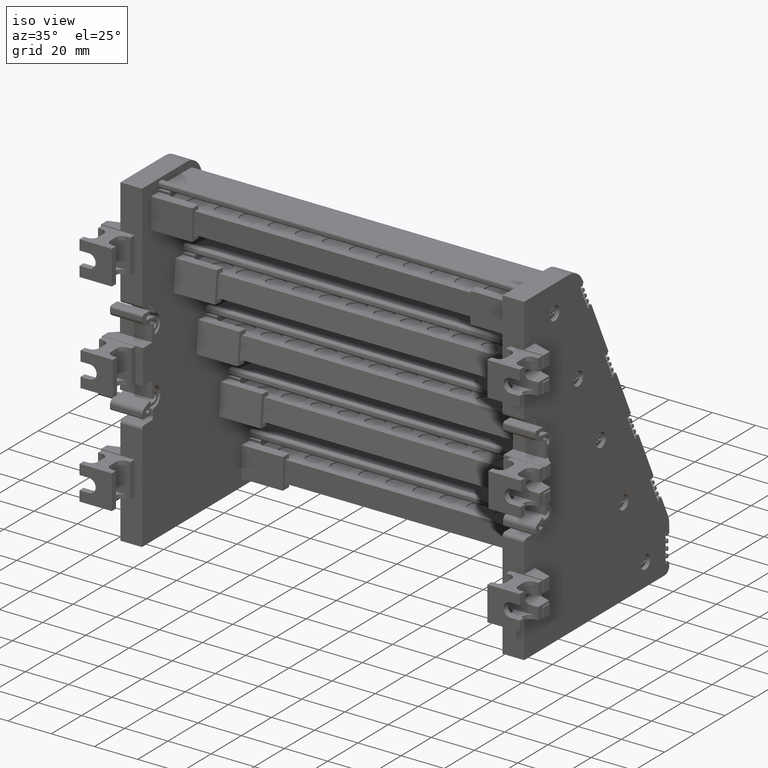
[diagram: clean part render]
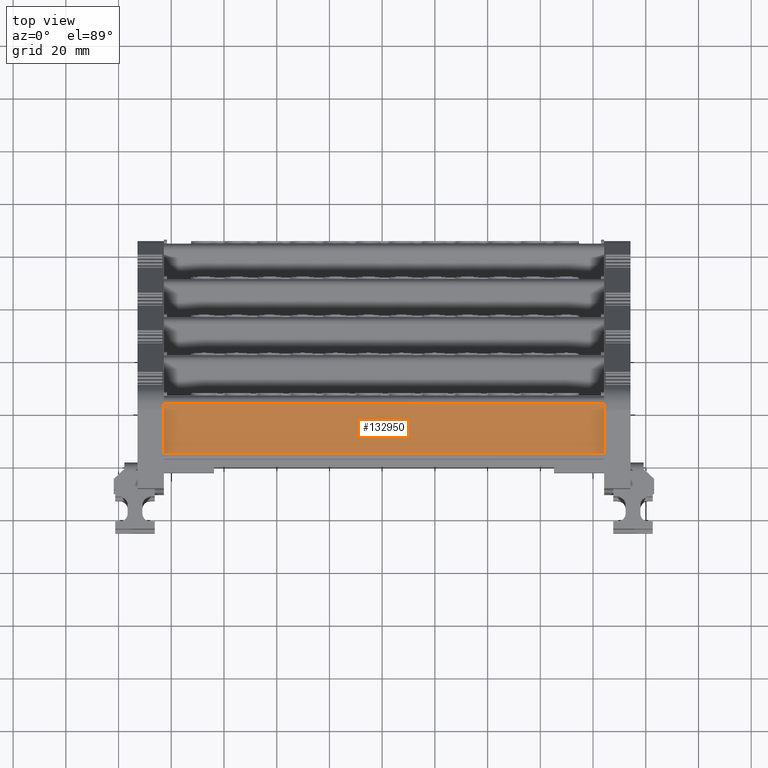
[diagram: tour spotlight — one face highlighted and labeled with its STEP entity id]
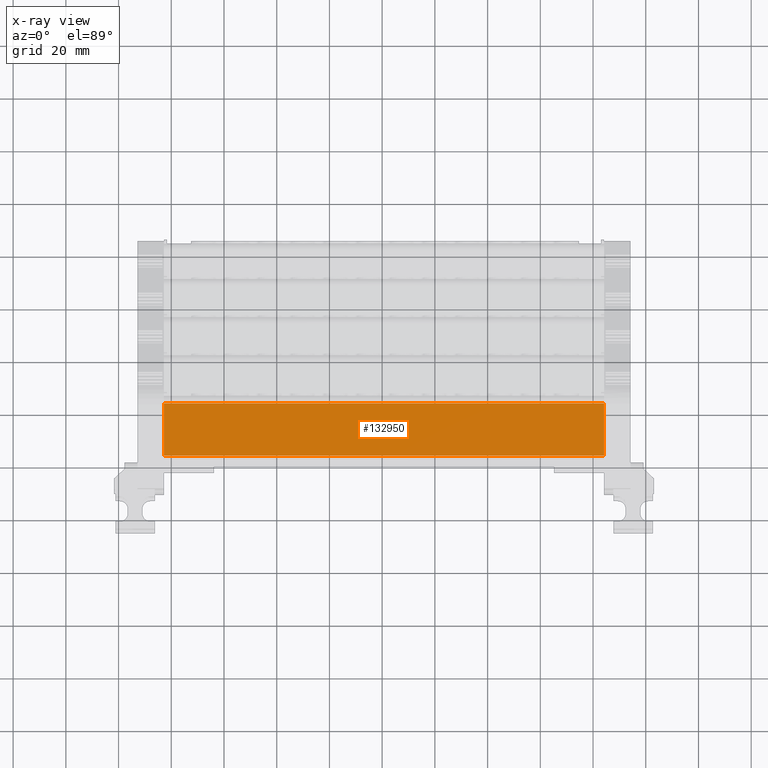
[diagram: x-ray of the same camera — body ghosted, this tour face saturated]
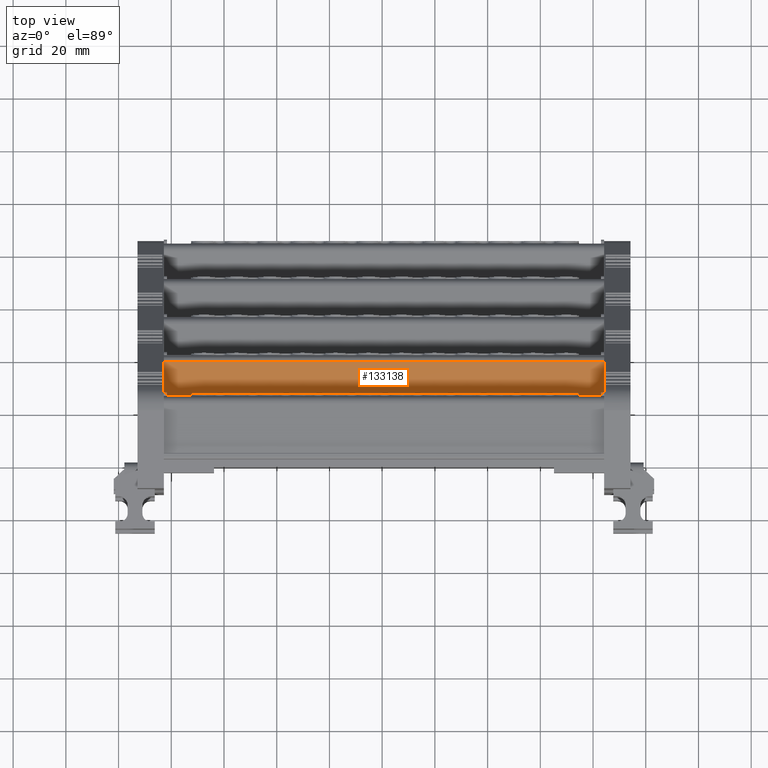
[diagram: tour spotlight — one face highlighted and labeled with its STEP entity id]
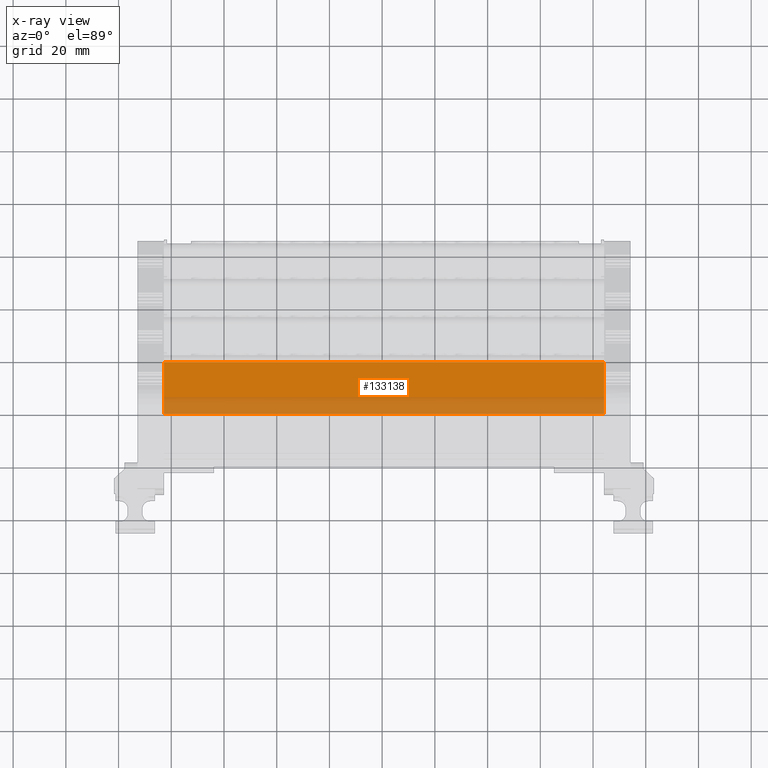
[diagram: x-ray of the same camera — body ghosted, this tour face saturated]
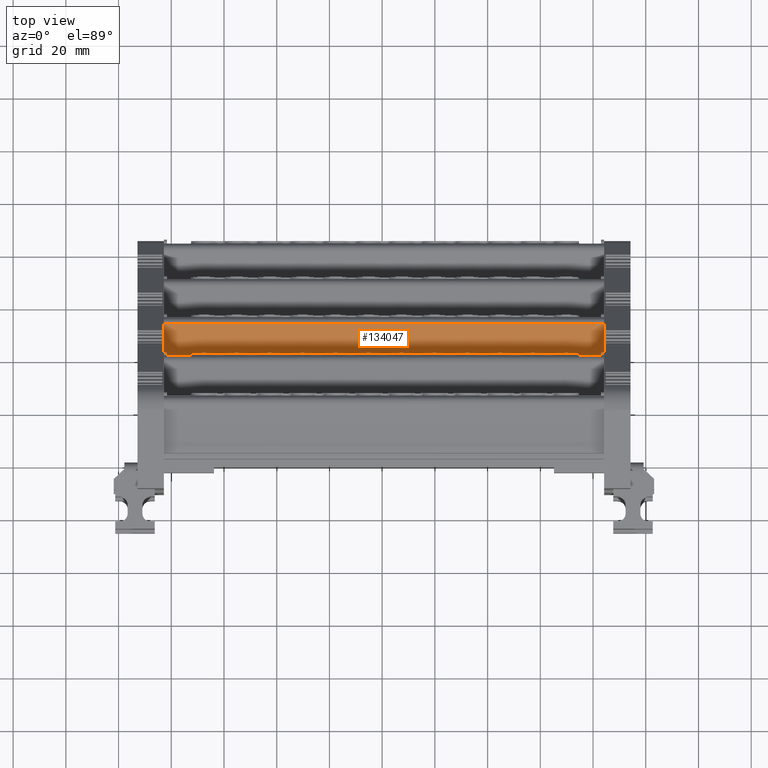
[diagram: tour spotlight — one face highlighted and labeled with its STEP entity id]
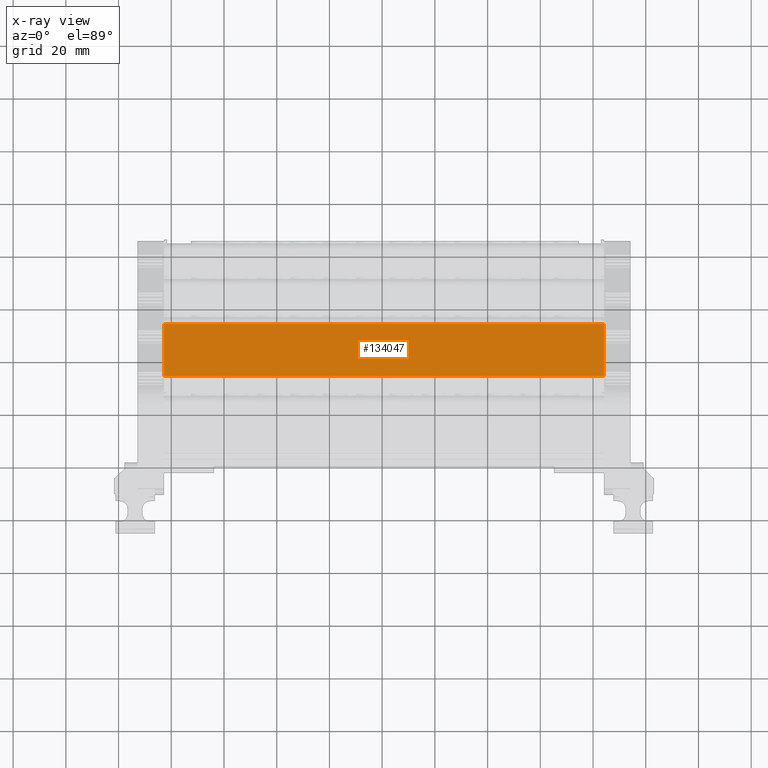
[diagram: x-ray of the same camera — body ghosted, this tour face saturated]
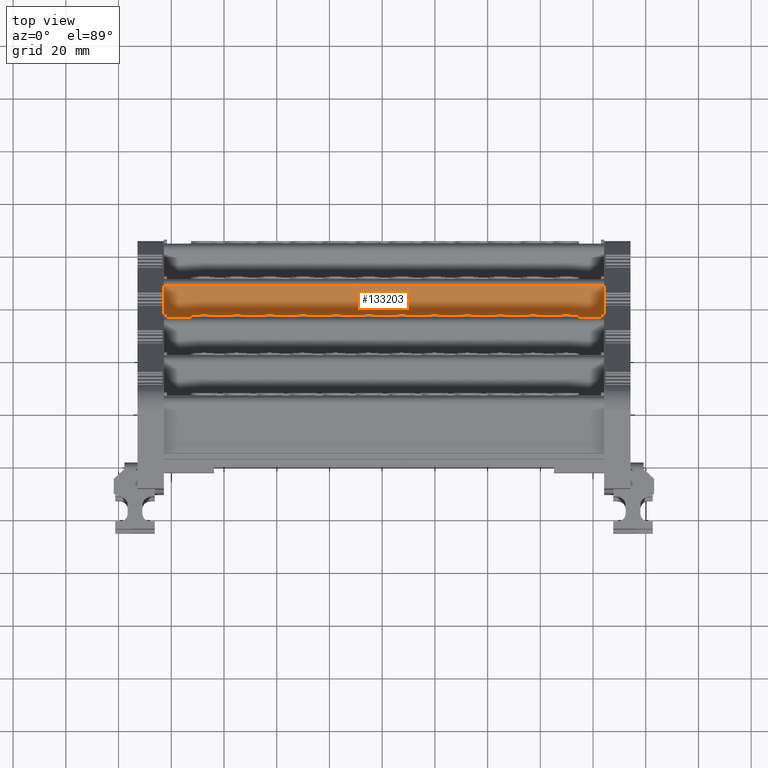
[diagram: tour spotlight — one face highlighted and labeled with its STEP entity id]
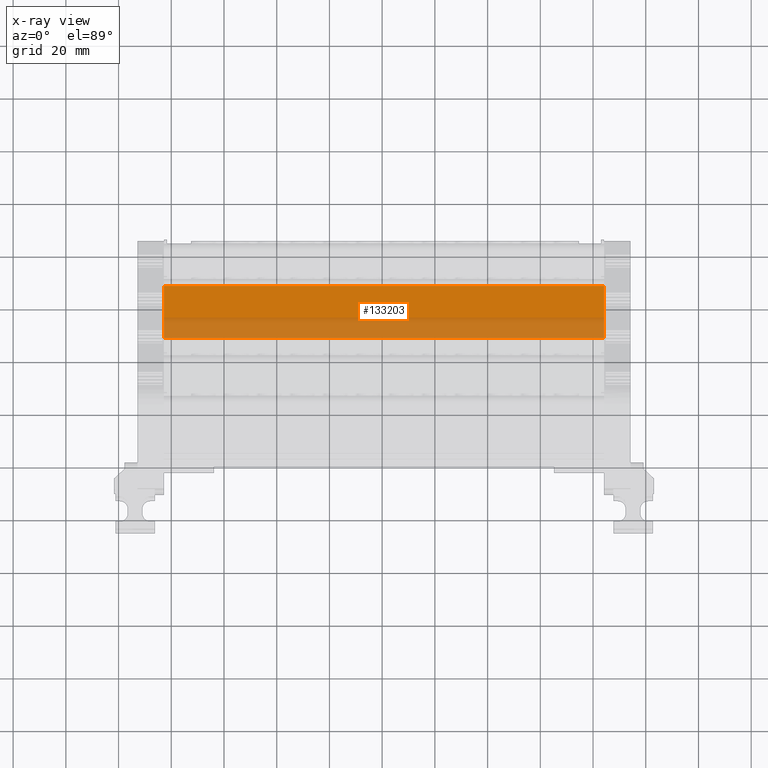
[diagram: x-ray of the same camera — body ghosted, this tour face saturated]
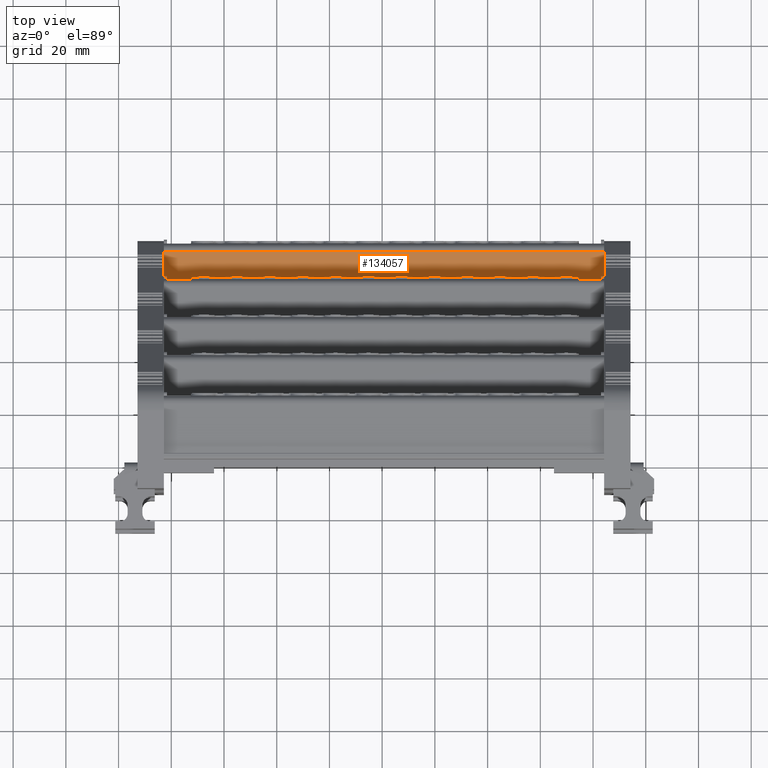
[diagram: tour spotlight — one face highlighted and labeled with its STEP entity id]
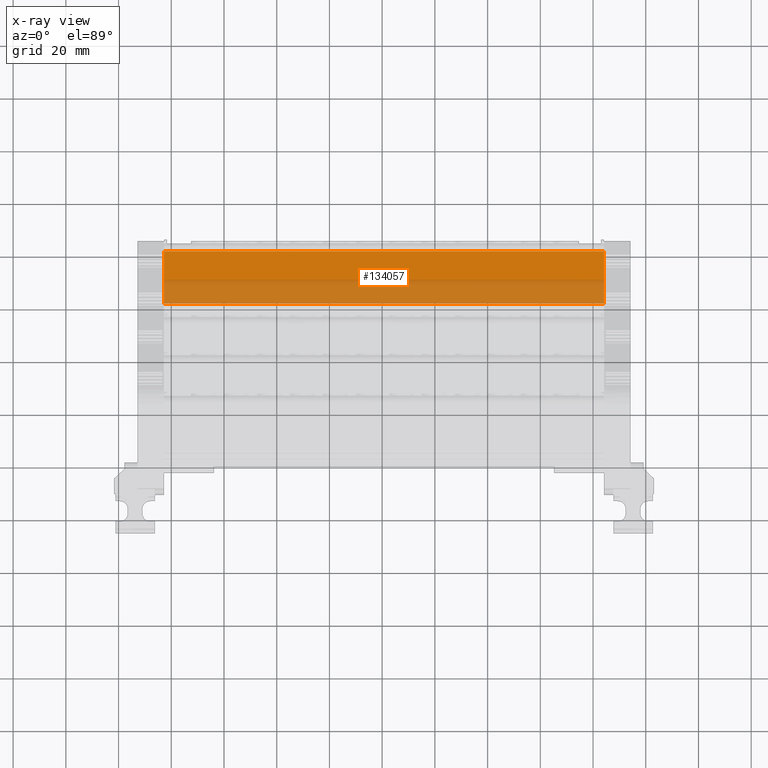
[diagram: x-ray of the same camera — body ghosted, this tour face saturated]
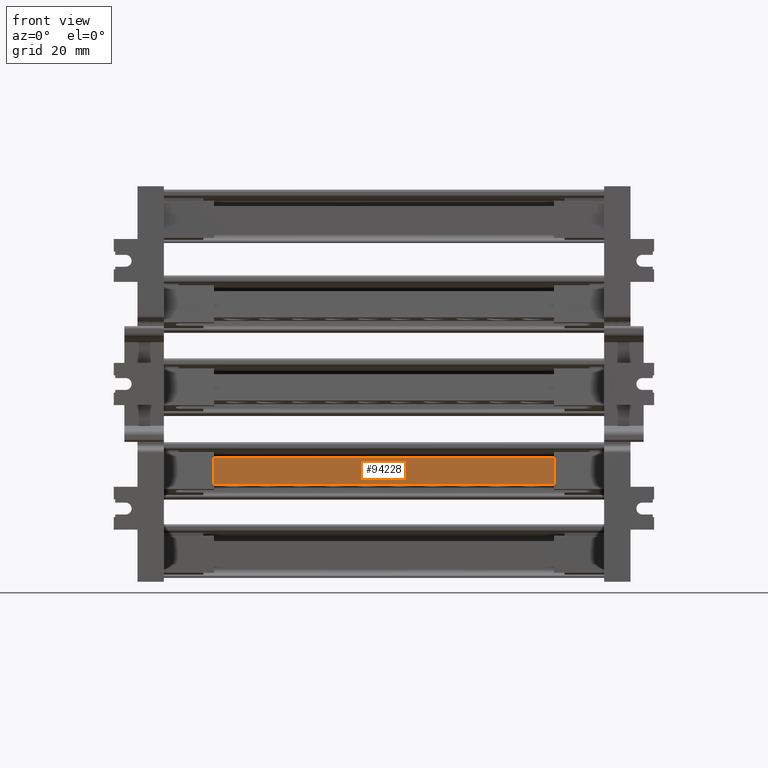
[diagram: tour spotlight — one face highlighted and labeled with its STEP entity id]
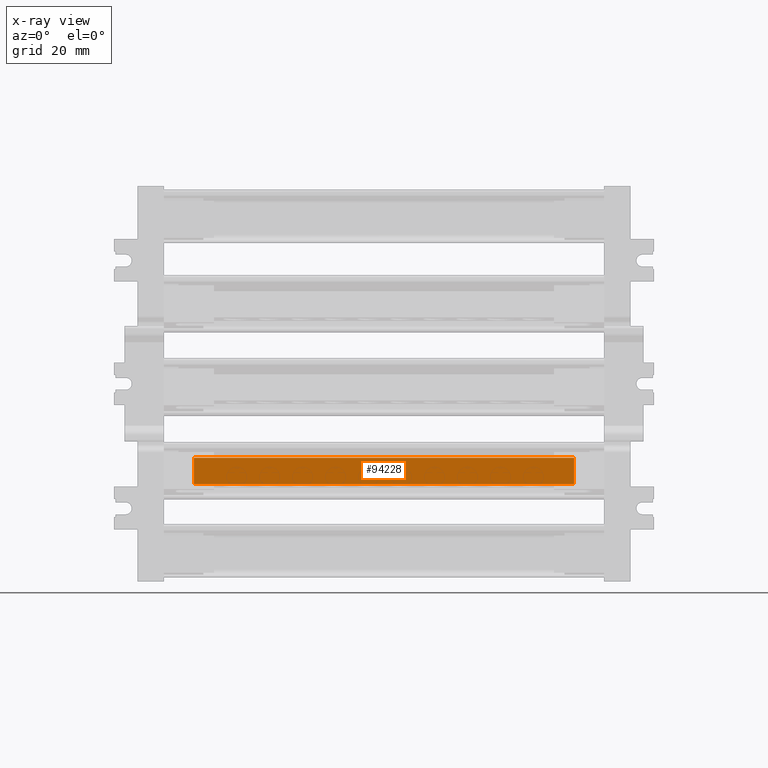
[diagram: x-ray of the same camera — body ghosted, this tour face saturated]
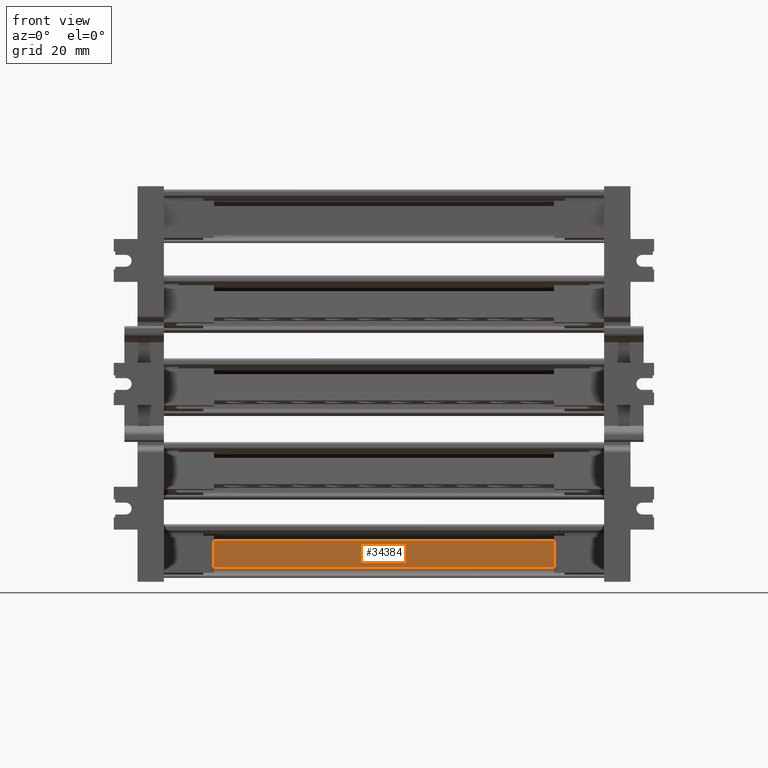
[diagram: tour spotlight — one face highlighted and labeled with its STEP entity id]
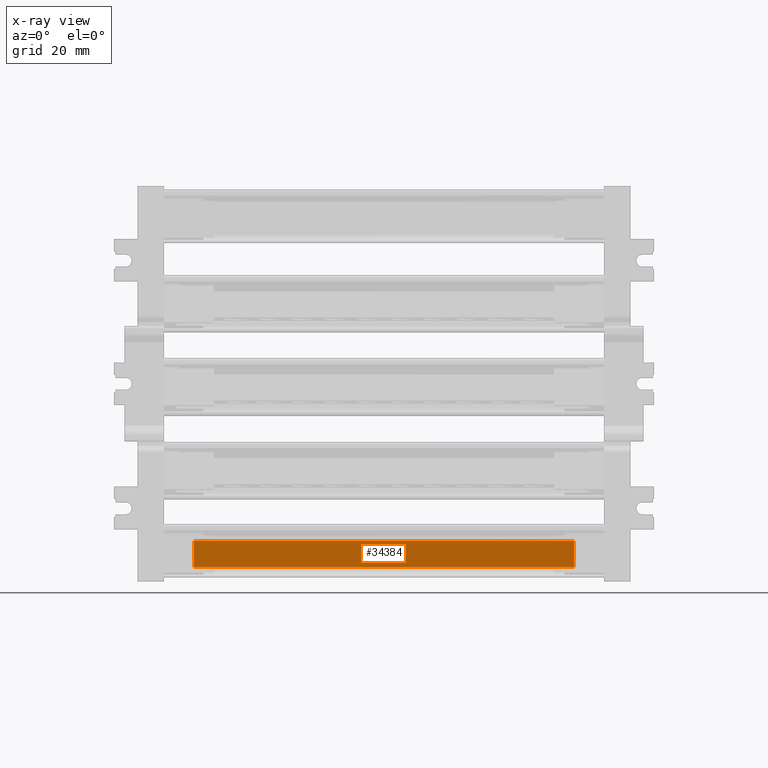
[diagram: x-ray of the same camera — body ghosted, this tour face saturated]
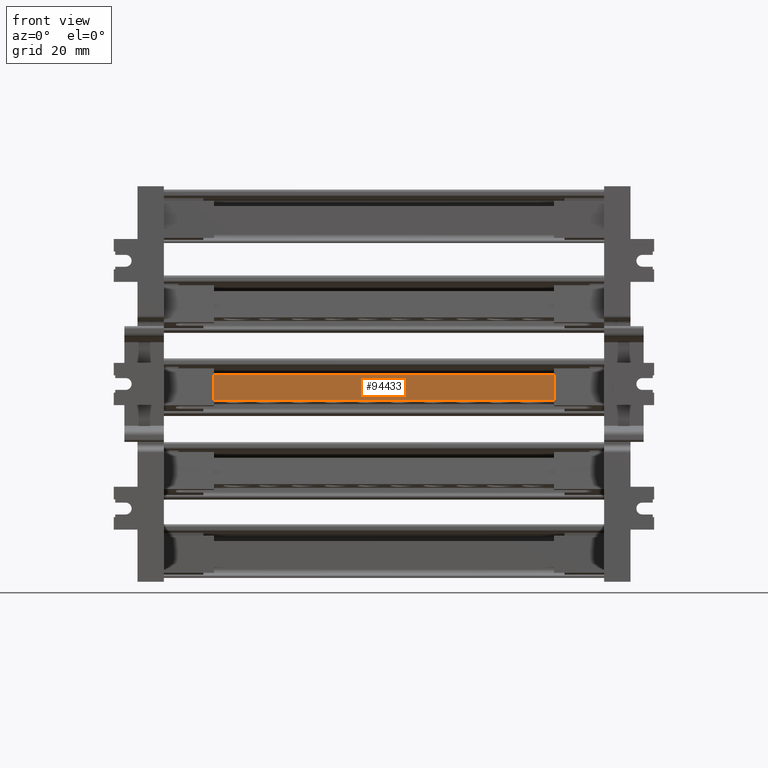
[diagram: tour spotlight — one face highlighted and labeled with its STEP entity id]
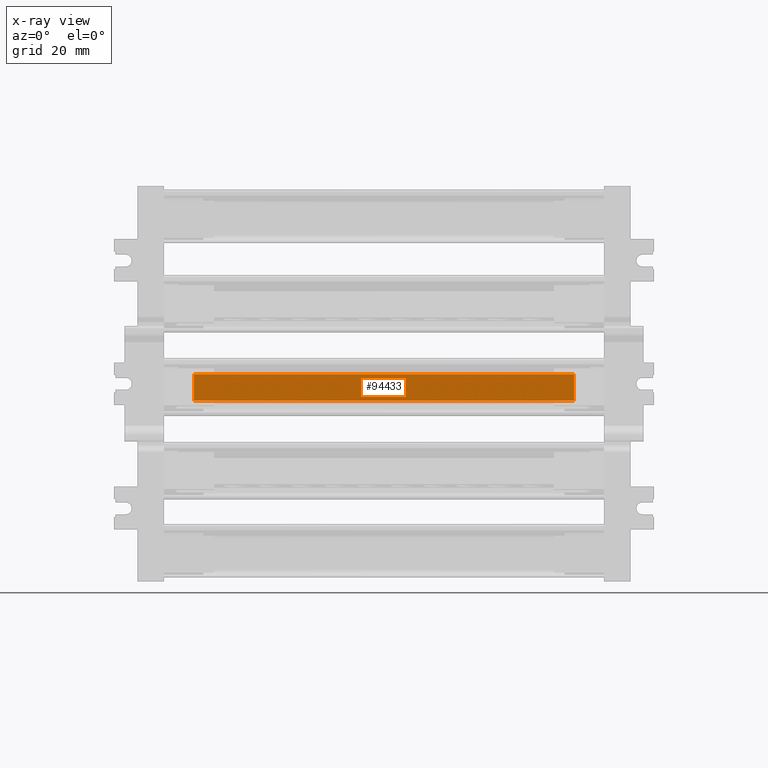
[diagram: x-ray of the same camera — body ghosted, this tour face saturated]
A machine part: a face-by-face anatomy tour. The part has 5392 B-rep faces; the first image is the clean iso view, then the 8 largest visible faces are spotlighted one at a time (largest first), each with its STEP entity span.

Face 1 — top view, entity #132950. An x-ray twin of the same camera follows (body ghosted, this face saturated) — the face is partly hidden behind the body. In plain terms, the highlighted planar face has unit normal (0, 0.0175, 0.9998).
Definition (entity closure, byte-faithful):
#45374 = EDGE_LOOP ( 'NONE', ( #173034, #172730, #173039, #172738 ) ) ;
#56541 = B_SPLINE_CURVE_WITH_KNOTS ( 'NONE', 3,
 ( #119553, #119496, #119585, #119507 ),
 .UNSPECIFIED., .F., .F.,
 ( 4, 4 ),
 ( 0.0000000000000000000, 1.000000000000000000 ),
 .UNSPECIFIED. ) ;
#110818 = AXIS2_PLACEMENT_3D ( 'NONE', #124854, #124819, #124773 ) ;
#119496 = CARTESIAN_POINT ( 'NONE',  ( 44.19725230226237800, 108.6126360825371600, -275.2060915105959700 ) ) ;
#119507 = CARTESIAN_POINT ( 'NONE',  ( 44.19725230226230700, 121.8722233714273000, -275.4375303675025700 ) ) ;
#119553 = CARTESIAN_POINT ( 'NONE',  ( 44.19725230226230700, 101.9828424380921100, -275.0903720821427800 ) ) ;
#119585 = CARTESIAN_POINT ( 'NONE',  ( 44.19725230226237800, 115.2424297269822200, -275.3218109390492100 ) ) ;
#123283 = VECTOR ( 'NONE', #163120, 1000.000000000000000 ) ;
#123488 = VECTOR ( 'NONE', #174391, 1000.000000000000000 ) ;
#123497 = VECTOR ( 'NONE', #174487, 999.9999999999998900 ) ;
#124773 = DIRECTION ( 'NONE',  ( 0.0000000000000000000, -0.9998477058144490400, 0.01745179582687301400 ) ) ;
#124816 = PLANE ( 'NONE',  #110818 ) ;
#124819 = DIRECTION ( 'NONE',  ( 4.023920454948492900E-015, 0.01745179582687301700, 0.9998477058144491500 ) ) ;
#124854 = CARTESIAN_POINT ( 'NONE',  ( -12.17442802713234900, 113.5092483342591100, -275.2915592040889100 ) ) ;
#124867 = FACE_OUTER_BOUND ( 'NONE', #45374, .T. ) ;
#132950 = ADVANCED_FACE ( 'NONE', ( #124867 ), #124816, .T. ) ;
#142400 = EDGE_CURVE ( 'NONE', #159262, #152121, #163104, .T. ) ;
#142493 = EDGE_CURVE ( 'NONE', #152121, #152125, #174245, .T. ) ;
#142496 = EDGE_CURVE ( 'NONE', #152125, #159134, #174513, .T. ) ;
#152121 = VERTEX_POINT ( 'NONE', #204734 ) ;
#152125 = VERTEX_POINT ( 'NONE', #204736 ) ;
#159134 = VERTEX_POINT ( 'NONE', #219538 ) ;
#159262 = VERTEX_POINT ( 'NONE', #219687 ) ;
#163064 = CARTESIAN_POINT ( 'NONE',  ( -12.17442802713234900, 121.8722233714272800, -275.4375303675022900 ) ) ;
#163104 = LINE ( 'NONE', #163064, #123283 ) ;
#163120 = DIRECTION ( 'NONE',  ( -1.000000000000000000, 7.022463820333907800E-017, 4.023307635260085000E-015 ) ) ;
#172730 = ORIENTED_EDGE ( 'NONE', *, *, #142496, .T. ) ;
#172738 = ORIENTED_EDGE ( 'NONE', *, *, #142400, .T. ) ;
#173034 = ORIENTED_EDGE ( 'NONE', *, *, #142493, .T. ) ;
#173039 = ORIENTED_EDGE ( 'NONE', *, *, #184227, .T. ) ;
#174245 = LINE ( 'NONE', #174464, #123497 ) ;
#174391 = DIRECTION ( 'NONE',  ( 1.000000000000000000, -7.022463820333907800E-017, -4.023307635260085000E-015 ) ) ;
#174419 = CARTESIAN_POINT ( 'NONE',  ( -12.17442802713234900, 101.9828424380929200, -275.0903720821424900 ) ) ;
#174464 = CARTESIAN_POINT ( 'NONE',  ( -122.7994280271322500, 121.8722233714281100, -275.4375303675018400 ) ) ;
#174487 = DIRECTION ( 'NONE',  ( -9.766992792336624200E-015, -0.9998477058144491500, 0.01745179582687365200 ) ) ;
#174513 = LINE ( 'NONE', #174419, #123488 ) ;
#184227 = EDGE_CURVE ( 'NONE', #159134, #159262, #56541, .T. ) ;
#204734 = CARTESIAN_POINT ( 'NONE',  ( -122.7994280271323100, 121.8722233714279100, -275.4375303675018900 ) ) ;
#204736 = CARTESIAN_POINT ( 'NONE',  ( -122.7994280271324900, 101.9828424380929300, -275.0903720821421000 ) ) ;
#219538 = CARTESIAN_POINT ( 'NONE',  ( 44.19725230226230700, 101.9828424380921100, -275.0903720821427800 ) ) ;
#219687 = CARTESIAN_POINT ( 'NONE',  ( 44.19725230226230700, 121.8722233714273000, -275.4375303675025700 ) ) ;

Face 2 — top view, entity #133138. An x-ray twin of the same camera follows (body ghosted, this face saturated) — the face is partly hidden behind the body. In plain terms, the highlighted planar face has unit normal (0, 0.1045, 0.9945).
Definition (entity closure, byte-faithful):
#57103 = B_SPLINE_CURVE_WITH_KNOTS ( 'NONE', 3,
 ( #125987, #126013, #125894, #126083 ),
 .UNSPECIFIED., .F., .F.,
 ( 4, 4 ),
 ( 0.0000000000000000000, 1.000000000000000000 ),
 .UNSPECIFIED. ) ;
#111031 = AXIS2_PLACEMENT_3D ( 'NONE', #126241, #126158, #126298 ) ;
#123711 = VECTOR ( 'NONE', #184459, 1000.000000000000000 ) ;
#123748 = VECTOR ( 'NONE', #184119, 1000.000000000000100 ) ;
#123750 = VECTOR ( 'NONE', #183962, 1000.000000000000000 ) ;
#125894 = CARTESIAN_POINT ( 'NONE',  ( 44.19725230226230700, 131.5795694756156700, -309.0870803533137000 ) ) ;
#125987 = CARTESIAN_POINT ( 'NONE',  ( 44.19725230226225000, 118.3906101450128100, -307.7008730124403000 ) ) ;
#126013 = CARTESIAN_POINT ( 'NONE',  ( 44.19725230226230700, 124.9850898103142200, -308.3939766828770000 ) ) ;
#126083 = CARTESIAN_POINT ( 'NONE',  ( 44.19725230226226400, 138.1740491409170800, -309.7801840237503400 ) ) ;
#126158 = DIRECTION ( 'NONE',  ( 4.413926909087862300E-015, 0.1045278559097110200, 0.9945219592039780100 ) ) ;
#126195 = PLANE ( 'NONE',  #111031 ) ;
#126241 = CARTESIAN_POINT ( 'NONE',  ( -12.17442802713046000, 129.8556199737834600, -308.9058870237389600 ) ) ;
#126296 = FACE_OUTER_BOUND ( 'NONE', #210824, .T. ) ;
#126298 = DIRECTION ( 'NONE',  ( 0.0000000000000000000, -0.9945219592039779000, 0.1045278559097110000 ) ) ;
#133138 = ADVANCED_FACE ( 'NONE', ( #126296 ), #126195, .T. ) ;
#143072 = EDGE_CURVE ( 'NONE', #152472, #159496, #183862, .T. ) ;
#143096 = EDGE_CURVE ( 'NONE', #152427, #152472, #184115, .T. ) ;
#143147 = EDGE_CURVE ( 'NONE', #159341, #152427, #184389, .T. ) ;
#152427 = VERTEX_POINT ( 'NONE', #204992 ) ;
#152472 = VERTEX_POINT ( 'NONE', #205070 ) ;
#159341 = VERTEX_POINT ( 'NONE', #219671 ) ;
#159496 = VERTEX_POINT ( 'NONE', #219860 ) ;
#167761 = ORIENTED_EDGE ( 'NONE', *, *, #143072, .T. ) ;
#167776 = ORIENTED_EDGE ( 'NONE', *, *, #143147, .T. ) ;
#167863 = ORIENTED_EDGE ( 'NONE', *, *, #143096, .T. ) ;
#167895 = ORIENTED_EDGE ( 'NONE', *, *, #184449, .T. ) ;
#183862 = LINE ( 'NONE', #184043, #123750 ) ;
#183962 = DIRECTION ( 'NONE',  ( 1.000000000000000000, -4.613783159491321200E-016, -4.389747237409218800E-015 ) ) ;
#184043 = CARTESIAN_POINT ( 'NONE',  ( -12.17442802713046000, 118.3906101450136500, -307.7008730124401800 ) ) ;
#184058 = CARTESIAN_POINT ( 'NONE',  ( -122.7994280271303800, 138.1740491409179600, -309.7801840237496500 ) ) ;
#184115 = LINE ( 'NONE', #184058, #123748 ) ;
#184119 = DIRECTION ( 'NONE',  ( -1.046463513464626300E-014, -0.9945219592039783500, 0.1045278559097066600 ) ) ;
#184389 = LINE ( 'NONE', #184400, #123711 ) ;
#184400 = CARTESIAN_POINT ( 'NONE',  ( -12.17442802713046000, 138.1740491409171100, -309.7801840237501100 ) ) ;
#184449 = EDGE_CURVE ( 'NONE', #159496, #159341, #57103, .T. ) ;
#184459 = DIRECTION ( 'NONE',  ( -1.000000000000000000, 4.613783159491321200E-016, 4.389747237409218800E-015 ) ) ;
#204992 = CARTESIAN_POINT ( 'NONE',  ( -122.7994280271304300, 138.1740491409177300, -309.7801840237496500 ) ) ;
#205070 = CARTESIAN_POINT ( 'NONE',  ( -122.7994280271305700, 118.3906101450137000, -307.7008730124397300 ) ) ;
#210824 = EDGE_LOOP ( 'NONE', ( #167863, #167761, #167895, #167776 ) ) ;
#219671 = CARTESIAN_POINT ( 'NONE',  ( 44.19725230226226400, 138.1740491409170800, -309.7801840237503400 ) ) ;
#219860 = CARTESIAN_POINT ( 'NONE',  ( 44.19725230226225000, 118.3906101450128100, -307.7008730124403000 ) ) ;

Face 3 — top view, entity #134047. An x-ray twin of the same camera follows (body ghosted, this face saturated) — the face is partly hidden behind the body. In plain terms, the highlighted planar face has unit normal (0, 0.1045, 0.9945).
Definition (entity closure, byte-faithful):
#26291 = EDGE_CURVE ( 'NONE', #155612, #155570, #98283, .T. ) ;
#26307 = EDGE_CURVE ( 'NONE', #160142, #155612, #98813, .T. ) ;
#26422 = EDGE_CURVE ( 'NONE', #155570, #160029, #97232, .T. ) ;
#57570 = B_SPLINE_CURVE_WITH_KNOTS ( 'NONE', 3,
 ( #150098, #150140, #150389, #150366 ),
 .UNSPECIFIED., .F., .F.,
 ( 4, 4 ),
 ( 0.0000000000000000000, 1.000000000000000000 ),
 .UNSPECIFIED. ) ;
#84647 = PLANE ( 'NONE',  #111654 ) ;
#84677 = DIRECTION ( 'NONE',  ( 4.413927121121813900E-015, 0.1045278559097110200, 0.9945219592039780100 ) ) ;
#84688 = DIRECTION ( 'NONE',  ( 0.0000000000000000000, -0.9945219592039779000, 0.1045278559097110000 ) ) ;
#84755 = CARTESIAN_POINT ( 'NONE',  ( -12.17442802713049800, 144.8559287746011800, -340.4065406521398200 ) ) ;
#84761 = FACE_OUTER_BOUND ( 'NONE', #212672, .T. ) ;
#97071 = CARTESIAN_POINT ( 'NONE',  ( -12.17442802713049800, 133.3909189458314900, -339.2015266408410500 ) ) ;
#97076 = DIRECTION ( 'NONE',  ( 1.000000000000000000, -4.613783381125864000E-016, -4.389747448281639700E-015 ) ) ;
#97232 = LINE ( 'NONE', #97071, #185299 ) ;
#98283 = LINE ( 'NONE', #98290, #185248 ) ;
#98290 = CARTESIAN_POINT ( 'NONE',  ( -122.7994280271303900, 153.1743579417355900, -341.2808376521507500 ) ) ;
#98293 = DIRECTION ( 'NONE',  ( -1.046463513464636900E-014, -0.9945219592039771200, 0.1045278559097188700 ) ) ;
#98713 = DIRECTION ( 'NONE',  ( -1.000000000000000000, 4.613783381125864000E-016, 4.389747448281639700E-015 ) ) ;
#98743 = CARTESIAN_POINT ( 'NONE',  ( -12.17442802713049800, 153.1743579417347100, -341.2808376521509800 ) ) ;
#98813 = LINE ( 'NONE', #98743, #185243 ) ;
#111654 = AXIS2_PLACEMENT_3D ( 'NONE', #84755, #84677, #84688 ) ;
#113420 = ORIENTED_EDGE ( 'NONE', *, *, #26291, .T. ) ;
#113448 = ORIENTED_EDGE ( 'NONE', *, *, #184718, .T. ) ;
#113457 = ORIENTED_EDGE ( 'NONE', *, *, #26422, .T. ) ;
#113466 = ORIENTED_EDGE ( 'NONE', *, *, #26307, .T. ) ;
#134047 = ADVANCED_FACE ( 'NONE', ( #84761 ), #84647, .T. ) ;
#150098 = CARTESIAN_POINT ( 'NONE',  ( 44.19725230226247000, 133.3909189458306300, -339.2015266408412200 ) ) ;
#150140 = CARTESIAN_POINT ( 'NONE',  ( 44.19725230226265500, 139.9853986111319800, -339.8946303112779200 ) ) ;
#150366 = CARTESIAN_POINT ( 'NONE',  ( 44.19725230226247000, 153.1743579417346800, -341.2808376521512100 ) ) ;
#150389 = CARTESIAN_POINT ( 'NONE',  ( 44.19725230226265500, 146.5798782764333300, -340.5877339817145600 ) ) ;
#155570 = VERTEX_POINT ( 'NONE', #215895 ) ;
#155612 = VERTEX_POINT ( 'NONE', #215864 ) ;
#160029 = VERTEX_POINT ( 'NONE', #220950 ) ;
#160142 = VERTEX_POINT ( 'NONE', #221175 ) ;
#184718 = EDGE_CURVE ( 'NONE', #160029, #160142, #57570, .T. ) ;
#185243 = VECTOR ( 'NONE', #98713, 1000.000000000000000 ) ;
#185248 = VECTOR ( 'NONE', #98293, 1000.000000000000000 ) ;
#185299 = VECTOR ( 'NONE', #97076, 1000.000000000000000 ) ;
#212672 = EDGE_LOOP ( 'NONE', ( #113420, #113457, #113448, #113466 ) ) ;
#215864 = CARTESIAN_POINT ( 'NONE',  ( -122.7994280271304500, 153.1743579417353700, -341.2808376521506900 ) ) ;
#215895 = CARTESIAN_POINT ( 'NONE',  ( -122.7994280271306200, 133.3909189458315400, -339.2015266408406000 ) ) ;
#220950 = CARTESIAN_POINT ( 'NONE',  ( 44.19725230226247000, 133.3909189458306300, -339.2015266408412200 ) ) ;
#221175 = CARTESIAN_POINT ( 'NONE',  ( 44.19725230226247000, 153.1743579417346800, -341.2808376521512100 ) ) ;

Face 4 — top view, entity #133203. An x-ray twin of the same camera follows (body ghosted, this face saturated) — the face is partly hidden behind the body. In plain terms, the highlighted planar face has unit normal (0, 0.1045, 0.9945).
Definition (entity closure, byte-faithful):
#25109 = EDGE_CURVE ( 'NONE', #152782, #159535, #229242, .T. ) ;
#25301 = EDGE_CURVE ( 'NONE', #152750, #152782, #231311, .T. ) ;
#25343 = EDGE_CURVE ( 'NONE', #159631, #152750, #209359, .T. ) ;
#57039 = B_SPLINE_CURVE_WITH_KNOTS ( 'NONE', 3,
 ( #126639, #126618, #126623, #126507 ),
 .UNSPECIFIED., .F., .F.,
 ( 4, 4 ),
 ( 0.0000000000000000000, 1.000000000000000000 ),
 .UNSPECIFIED. ) ;
#111134 = AXIS2_PLACEMENT_3D ( 'NONE', #126580, #126582, #126627 ) ;
#112722 = ORIENTED_EDGE ( 'NONE', *, *, #25301, .T. ) ;
#112824 = ORIENTED_EDGE ( 'NONE', *, *, #25109, .T. ) ;
#112837 = ORIENTED_EDGE ( 'NONE', *, *, #184512, .T. ) ;
#112840 = ORIENTED_EDGE ( 'NONE', *, *, #25343, .T. ) ;
#126506 = PLANE ( 'NONE',  #111134 ) ;
#126507 = CARTESIAN_POINT ( 'NONE',  ( 44.19725230226226400, 168.1746667425525700, -373.0314912805535500 ) ) ;
#126580 = CARTESIAN_POINT ( 'NONE',  ( -12.17442802713049800, 159.8562375754188500, -372.1571942805421100 ) ) ;
#126582 = DIRECTION ( 'NONE',  ( 4.413926909087862300E-015, 0.1045278559097110200, 0.9945219592039780100 ) ) ;
#126618 = CARTESIAN_POINT ( 'NONE',  ( 44.19725230226230700, 154.9857074119496800, -371.6452839396801600 ) ) ;
#126623 = CARTESIAN_POINT ( 'NONE',  ( 44.19725230226230700, 161.5801870772511100, -372.3383876101168500 ) ) ;
#126627 = DIRECTION ( 'NONE',  ( 0.0000000000000000000, -0.9945219592039779000, 0.1045278559097110000 ) ) ;
#126637 = FACE_OUTER_BOUND ( 'NONE', #211432, .T. ) ;
#126639 = CARTESIAN_POINT ( 'NONE',  ( 44.19725230226225000, 148.3912277466482400, -370.9521802692434600 ) ) ;
#133203 = ADVANCED_FACE ( 'NONE', ( #126637 ), #126506, .T. ) ;
#152750 = VERTEX_POINT ( 'NONE', #202064 ) ;
#152782 = VERTEX_POINT ( 'NONE', #202077 ) ;
#159535 = VERTEX_POINT ( 'NONE', #219863 ) ;
#159631 = VERTEX_POINT ( 'NONE', #219843 ) ;
#184512 = EDGE_CURVE ( 'NONE', #159535, #159631, #57039, .T. ) ;
#202064 = CARTESIAN_POINT ( 'NONE',  ( -122.7994280271304500, 168.1746667425532600, -373.0314912805529800 ) ) ;
#202077 = CARTESIAN_POINT ( 'NONE',  ( -122.7994280271306200, 148.3912277466490900, -370.9521802692429400 ) ) ;
#209308 = CARTESIAN_POINT ( 'NONE',  ( -12.17442802713049800, 168.1746667425526000, -373.0314912805532700 ) ) ;
#209359 = LINE ( 'NONE', #209308, #223497 ) ;
#209387 = DIRECTION ( 'NONE',  ( -1.000000000000000000, 4.613783159491321200E-016, 4.389747237409218800E-015 ) ) ;
#211432 = EDGE_LOOP ( 'NONE', ( #112722, #112824, #112837, #112840 ) ) ;
#219843 = CARTESIAN_POINT ( 'NONE',  ( 44.19725230226226400, 168.1746667425525700, -373.0314912805535500 ) ) ;
#219863 = CARTESIAN_POINT ( 'NONE',  ( 44.19725230226225000, 148.3912277466482400, -370.9521802692434600 ) ) ;
#223456 = VECTOR ( 'NONE', #231216, 1000.000000000000000 ) ;
#223497 = VECTOR ( 'NONE', #209387, 1000.000000000000000 ) ;
#226120 = VECTOR ( 'NONE', #229298, 1000.000000000000000 ) ;
#229242 = LINE ( 'NONE', #229245, #226120 ) ;
#229245 = CARTESIAN_POINT ( 'NONE',  ( -12.17442802713049800, 148.3912277466490400, -370.9521802692433400 ) ) ;
#229298 = DIRECTION ( 'NONE',  ( 1.000000000000000000, -4.613783159491321200E-016, -4.389747237409218800E-015 ) ) ;
#231216 = DIRECTION ( 'NONE',  ( -1.046463513464619700E-014, -0.9945219592039775700, 0.1045278559097143800 ) ) ;
#231253 = CARTESIAN_POINT ( 'NONE',  ( -122.7994280271304000, 168.1746667425534600, -373.0314912805530400 ) ) ;
#231311 = LINE ( 'NONE', #231253, #223456 ) ;

Face 5 — top view, entity #134057. An x-ray twin of the same camera follows (body ghosted, this face saturated) — the face is partly hidden behind the body. In plain terms, the highlighted planar face has unit normal (0, 0.0175, 0.9998).
Definition (entity closure, byte-faithful):
#26934 = EDGE_CURVE ( 'NONE', #155799, #160349, #116096, .T. ) ;
#26945 = EDGE_CURVE ( 'NONE', #155751, #155799, #116169, .T. ) ;
#26996 = EDGE_CURVE ( 'NONE', #160251, #155751, #117136, .T. ) ;
#58001 = B_SPLINE_CURVE_WITH_KNOTS ( 'NONE', 3,
 ( #151191, #151309, #151291, #151302 ),
 .UNSPECIFIED., .F., .F.,
 ( 4, 4 ),
 ( 0.0000000000000000000, 1.000000000000000000 ),
 .UNSPECIFIED. ) ;
#84654 = CARTESIAN_POINT ( 'NONE',  ( -12.17442802713246800, 173.5104835375308900, -402.2941737176699300 ) ) ;
#84658 = DIRECTION ( 'NONE',  ( 4.023914425132825600E-015, 0.01745179582687301700, 0.9998477058144491500 ) ) ;
#84664 = DIRECTION ( 'NONE',  ( 0.0000000000000000000, -0.9998477058144490400, 0.01745179582687301400 ) ) ;
#84671 = PLANE ( 'NONE',  #111660 ) ;
#84702 = FACE_OUTER_BOUND ( 'NONE', #212952, .T. ) ;
#99313 = ORIENTED_EDGE ( 'NONE', *, *, #26945, .T. ) ;
#99331 = ORIENTED_EDGE ( 'NONE', *, *, #26996, .T. ) ;
#99365 = ORIENTED_EDGE ( 'NONE', *, *, #184759, .T. ) ;
#99497 = ORIENTED_EDGE ( 'NONE', *, *, #26934, .T. ) ;
#111660 = AXIS2_PLACEMENT_3D ( 'NONE', #84654, #84658, #84664 ) ;
#116034 = CARTESIAN_POINT ( 'NONE',  ( -12.17442802713246800, 161.9840776413647100, -402.0929865957235200 ) ) ;
#116039 = DIRECTION ( 'NONE',  ( 1.000000000000000000, -7.022453297222717100E-017, -4.023301606362722700E-015 ) ) ;
#116096 = LINE ( 'NONE', #116034, #191702 ) ;
#116151 = CARTESIAN_POINT ( 'NONE',  ( -122.7994280271323900, 181.8734585746998400, -402.4401448810829200 ) ) ;
#116169 = LINE ( 'NONE', #116151, #191716 ) ;
#116209 = DIRECTION ( 'NONE',  ( -9.766992792336658900E-015, -0.9998477058144490400, 0.01745179582687370800 ) ) ;
#117136 = LINE ( 'NONE', #117209, #191707 ) ;
#117209 = CARTESIAN_POINT ( 'NONE',  ( -12.17442802713246800, 181.8734585746989900, -402.4401448810833100 ) ) ;
#117223 = DIRECTION ( 'NONE',  ( -1.000000000000000000, 7.022453297222717100E-017, 4.023301606362722700E-015 ) ) ;
#134057 = ADVANCED_FACE ( 'NONE', ( #84702 ), #84671, .T. ) ;
#151191 = CARTESIAN_POINT ( 'NONE',  ( 44.19725230226262600, 161.9840776413638800, -402.0929865957238000 ) ) ;
#151291 = CARTESIAN_POINT ( 'NONE',  ( 44.19725230226293200, 175.2436649302539700, -402.3244254526302400 ) ) ;
#151302 = CARTESIAN_POINT ( 'NONE',  ( 44.19725230226264000, 181.8734585746988400, -402.4401448810836000 ) ) ;
#151309 = CARTESIAN_POINT ( 'NONE',  ( 44.19725230226293200, 168.6138712858089300, -402.2087060241770500 ) ) ;
#155751 = VERTEX_POINT ( 'NONE', #216132 ) ;
#155799 = VERTEX_POINT ( 'NONE', #216526 ) ;
#160251 = VERTEX_POINT ( 'NONE', #221160 ) ;
#160349 = VERTEX_POINT ( 'NONE', #221325 ) ;
#184759 = EDGE_CURVE ( 'NONE', #160349, #160251, #58001, .T. ) ;
#191702 = VECTOR ( 'NONE', #116039, 1000.000000000000000 ) ;
#191707 = VECTOR ( 'NONE', #117223, 1000.000000000000000 ) ;
#191716 = VECTOR ( 'NONE', #116209, 1000.000000000000100 ) ;
#212952 = EDGE_LOOP ( 'NONE', ( #99313, #99497, #99365, #99331 ) ) ;
#216132 = CARTESIAN_POINT ( 'NONE',  ( -122.7994280271324500, 181.8734585746996400, -402.4401448810829200 ) ) ;
#216526 = CARTESIAN_POINT ( 'NONE',  ( -122.7994280271326200, 161.9840776413647100, -402.0929865957231200 ) ) ;
#221160 = CARTESIAN_POINT ( 'NONE',  ( 44.19725230226264000, 181.8734585746988400, -402.4401448810836000 ) ) ;
#221325 = CARTESIAN_POINT ( 'NONE',  ( 44.19725230226262600, 161.9840776413638800, -402.0929865957238000 ) ) ;

Face 6 — front view, entity #94228. An x-ray twin of the same camera follows (body ghosted, this face saturated) — the face is partly hidden behind the body. In plain terms, the highlighted planar face has unit normal (-0, 0.9962, -0.0872).
Definition (entity closure, byte-faithful):
#21859 = EDGE_CURVE ( 'NONE', #138089, #138073, #221377, .T. ) ;
#24514 = EDGE_CURVE ( 'NONE', #138201, #137910, #207409, .T. ) ;
#75313 = AXIS2_PLACEMENT_3D ( 'NONE', #81615, #81626, #81576 ) ;
#81576 = DIRECTION ( 'NONE',  ( 0.0000000000000000000, 0.08715574274778953300, 0.9961946980917340000 ) ) ;
#81590 = FACE_OUTER_BOUND ( 'NONE', #226922, .T. ) ;
#81612 = PLANE ( 'NONE',  #75313 ) ;
#81615 = CARTESIAN_POINT ( 'NONE',  ( -119.2744280271296400, 143.9785825283248600, -374.9260149880359400 ) ) ;
#81626 = DIRECTION ( 'NONE',  ( -1.053647643457491300E-017, 0.9961946980917340000, -0.08715574274778953300 ) ) ;
#94228 = ADVANCED_FACE ( 'NONE', ( #81590 ), #81612, .F. ) ;
#133529 = CARTESIAN_POINT ( 'NONE',  ( -111.3742653920320700, 143.9785825283248900, -374.9260149880357200 ) ) ;
#134512 = CARTESIAN_POINT ( 'NONE',  ( 32.76901703721184600, 143.9785825283248900, -374.9260149880354300 ) ) ;
#134629 = CARTESIAN_POINT ( 'NONE',  ( 32.76901703721186000, 143.1070251008469800, -384.8879619689527100 ) ) ;
#135330 = CARTESIAN_POINT ( 'NONE',  ( -111.3742653920320400, 143.1070251008469800, -384.8879619689529400 ) ) ;
#137910 = VERTEX_POINT ( 'NONE', #133529 ) ;
#138073 = VERTEX_POINT ( 'NONE', #134629 ) ;
#138089 = VERTEX_POINT ( 'NONE', #134512 ) ;
#138201 = VERTEX_POINT ( 'NONE', #135330 ) ;
#181086 = CARTESIAN_POINT ( 'NONE',  ( -119.2744280271296400, 143.9785825283248600, -374.9260149880359400 ) ) ;
#181087 = DIRECTION ( 'NONE',  ( -1.000000000000000000, -3.607314304848287700E-016, -4.123179117685248000E-015 ) ) ;
#181129 = LINE ( 'NONE', #181086, #211186 ) ;
#201197 = CARTESIAN_POINT ( 'NONE',  ( -119.2744280271296000, 143.1070251008469500, -384.8879619689533300 ) ) ;
#201217 = DIRECTION ( 'NONE',  ( -1.000000000000000000, -3.607314304848287700E-016, -4.123179117685248000E-015 ) ) ;
#201233 = LINE ( 'NONE', #201197, #212120 ) ;
#205421 = EDGE_CURVE ( 'NONE', #138089, #137910, #181129, .T. ) ;
#205652 = EDGE_CURVE ( 'NONE', #138073, #138201, #201233, .T. ) ;
#207409 = LINE ( 'NONE', #207412, #225763 ) ;
#207412 = CARTESIAN_POINT ( 'NONE',  ( -111.3742653920320400, 143.9785825283248600, -374.9260149880359400 ) ) ;
#207466 = DIRECTION ( 'NONE',  ( 0.0000000000000000000, 0.08715574274778953300, 0.9961946980917340000 ) ) ;
#211186 = VECTOR ( 'NONE', #181087, 1000.000000000000000 ) ;
#212120 = VECTOR ( 'NONE', #201217, 1000.000000000000000 ) ;
#221377 = LINE ( 'NONE', #221479, #225536 ) ;
#221391 = DIRECTION ( 'NONE',  ( -0.0000000000000000000, -0.08715574274778953300, -0.9961946980917340000 ) ) ;
#221479 = CARTESIAN_POINT ( 'NONE',  ( 32.76901703721191000, 143.9785825283248600, -374.9260149880359400 ) ) ;
#225536 = VECTOR ( 'NONE', #221391, 1000.000000000000100 ) ;
#225763 = VECTOR ( 'NONE', #207466, 1000.000000000000100 ) ;
#226922 = EDGE_LOOP ( 'NONE', ( #227384, #227433, #227454, #227463 ) ) ;
#227384 = ORIENTED_EDGE ( 'NONE', *, *, #205421, .T. ) ;
#227433 = ORIENTED_EDGE ( 'NONE', *, *, #24514, .F. ) ;
#227454 = ORIENTED_EDGE ( 'NONE', *, *, #205652, .F. ) ;
#227463 = ORIENTED_EDGE ( 'NONE', *, *, #21859, .F. ) ;

Face 7 — front view, entity #34384. An x-ray twin of the same camera follows (body ghosted, this face saturated) — the face is partly hidden behind the body. In plain terms, the highlighted planar face has unit normal (0, 1, 0).
Definition (entity closure, byte-faithful):
#21436 = EDGE_CURVE ( 'NONE', #138638, #139186, #186235, .T. ) ;
#24183 = EDGE_CURVE ( 'NONE', #138674, #138634, #196701, .T. ) ;
#34384 = ADVANCED_FACE ( 'NONE', ( #188197 ), #188195, .F. ) ;
#137010 = CARTESIAN_POINT ( 'NONE',  ( 32.76901703721179600, 157.9371401917480300, -406.4362870451769300 ) ) ;
#137032 = CARTESIAN_POINT ( 'NONE',  ( -111.3742653920318700, 157.9371401917480300, -406.4362870451769300 ) ) ;
#137146 = CARTESIAN_POINT ( 'NONE',  ( -111.3742653920318400, 157.9371401917480300, -416.4362870451769800 ) ) ;
#138634 = VERTEX_POINT ( 'NONE', #137032 ) ;
#138638 = VERTEX_POINT ( 'NONE', #137010 ) ;
#138674 = VERTEX_POINT ( 'NONE', #137146 ) ;
#139165 = CARTESIAN_POINT ( 'NONE',  ( 32.76901703721179600, 157.9371401917480300, -416.4362870451770400 ) ) ;
#139186 = VERTEX_POINT ( 'NONE', #139165 ) ;
#145379 = AXIS2_PLACEMENT_3D ( 'NONE', #188150, #188154, #188201 ) ;
#168808 = ORIENTED_EDGE ( 'NONE', *, *, #205992, .T. ) ;
#168858 = ORIENTED_EDGE ( 'NONE', *, *, #21436, .F. ) ;
#168906 = ORIENTED_EDGE ( 'NONE', *, *, #176465, .F. ) ;
#169177 = ORIENTED_EDGE ( 'NONE', *, *, #24183, .F. ) ;
#176465 = EDGE_CURVE ( 'NONE', #139186, #138674, #226625, .T. ) ;
#186235 = LINE ( 'NONE', #186283, #225429 ) ;
#186283 = CARTESIAN_POINT ( 'NONE',  ( 32.76901703721178900, 157.9371401917480300, -406.4362870451769300 ) ) ;
#186306 = DIRECTION ( 'NONE',  ( -0.0000000000000000000, 0.0000000000000000000, -1.000000000000000000 ) ) ;
#188150 = CARTESIAN_POINT ( 'NONE',  ( -119.2744280271312900, 157.9371401917480300, -406.4362870451769300 ) ) ;
#188154 = DIRECTION ( 'NONE',  ( 0.0000000000000000000, 1.000000000000000000, 0.0000000000000000000 ) ) ;
#188195 = PLANE ( 'NONE',  #145379 ) ;
#188197 = FACE_OUTER_BOUND ( 'NONE', #230474, .T. ) ;
#188201 = DIRECTION ( 'NONE',  ( 0.0000000000000000000, -0.0000000000000000000, 1.000000000000000000 ) ) ;
#192037 = VECTOR ( 'NONE', #226634, 1000.000000000000000 ) ;
#196701 = LINE ( 'NONE', #196799, #225662 ) ;
#196799 = CARTESIAN_POINT ( 'NONE',  ( -111.3742653920318400, 157.9371401917480300, -406.4362870451769300 ) ) ;
#196852 = DIRECTION ( 'NONE',  ( 0.0000000000000000000, -0.0000000000000000000, 1.000000000000000000 ) ) ;
#205992 = EDGE_CURVE ( 'NONE', #138638, #138634, #216433, .T. ) ;
#216433 = LINE ( 'NONE', #216442, #219686 ) ;
#216442 = CARTESIAN_POINT ( 'NONE',  ( -119.2744280271312900, 157.9371401917480300, -406.4362870451769300 ) ) ;
#216640 = DIRECTION ( 'NONE',  ( -1.000000000000000000, 0.0000000000000000000, -0.0000000000000000000 ) ) ;
#219686 = VECTOR ( 'NONE', #216640, 1000.000000000000000 ) ;
#225429 = VECTOR ( 'NONE', #186306, 1000.000000000000000 ) ;
#225662 = VECTOR ( 'NONE', #196852, 1000.000000000000000 ) ;
#226625 = LINE ( 'NONE', #226660, #192037 ) ;
#226634 = DIRECTION ( 'NONE',  ( -1.000000000000000000, 0.0000000000000000000, -0.0000000000000000000 ) ) ;
#226660 = CARTESIAN_POINT ( 'NONE',  ( -119.2744280271312900, 157.9371401917480300, -416.4362870451770400 ) ) ;
#230474 = EDGE_LOOP ( 'NONE', ( #168906, #168858, #168808, #169177 ) ) ;

Face 8 — front view, entity #94433. An x-ray twin of the same camera follows (body ghosted, this face saturated) — the face is partly hidden behind the body. In plain terms, the highlighted planar face has unit normal (-0, 0.9962, -0.0872).
Definition (entity closure, byte-faithful):
#17291 = EDGE_LOOP ( 'NONE', ( #228060, #227936, #228014, #228112 ) ) ;
#22012 = EDGE_CURVE ( 'NONE', #138486, #138269, #234095, .T. ) ;
#24341 = EDGE_CURVE ( 'NONE', #138087, #138547, #198755, .T. ) ;
#75530 = AXIS2_PLACEMENT_3D ( 'NONE', #103663, #103659, #103572 ) ;
#94433 = ADVANCED_FACE ( 'NONE', ( #103642 ), #103620, .F. ) ;
#103572 = DIRECTION ( 'NONE',  ( 0.0000000000000000000, 0.08715574274778953300, 0.9961946980917340000 ) ) ;
#103620 = PLANE ( 'NONE',  #75530 ) ;
#103642 = FACE_OUTER_BOUND ( 'NONE', #17291, .T. ) ;
#103659 = DIRECTION ( 'NONE',  ( -1.053647643457491300E-017, 0.9961946980917340000, -0.08715574274778953300 ) ) ;
#103663 = CARTESIAN_POINT ( 'NONE',  ( -119.2744280271299100, 128.9785825283249200, -343.1753883762080500 ) ) ;
#134525 = CARTESIAN_POINT ( 'NONE',  ( -111.3742653920323300, 128.1070251008470400, -353.1373353571249300 ) ) ;
#135596 = CARTESIAN_POINT ( 'NONE',  ( 32.76901703721185300, 128.1070251008470400, -353.1373353571247000 ) ) ;
#136412 = CARTESIAN_POINT ( 'NONE',  ( 32.76901703721183900, 128.9785825283249500, -343.1753883762076500 ) ) ;
#136739 = CARTESIAN_POINT ( 'NONE',  ( -111.3742653920323600, 128.9785825283249200, -343.1753883762079900 ) ) ;
#138087 = VERTEX_POINT ( 'NONE', #134525 ) ;
#138269 = VERTEX_POINT ( 'NONE', #135596 ) ;
#138486 = VERTEX_POINT ( 'NONE', #136412 ) ;
#138547 = VERTEX_POINT ( 'NONE', #136739 ) ;
#198755 = LINE ( 'NONE', #198771, #225711 ) ;
#198771 = CARTESIAN_POINT ( 'NONE',  ( -111.3742653920323300, 128.9785825283249200, -343.1753883762080500 ) ) ;
#198772 = DIRECTION ( 'NONE',  ( 0.0000000000000000000, 0.08715574274778953300, 0.9961946980917340000 ) ) ;
#199705 = CARTESIAN_POINT ( 'NONE',  ( -119.2744280271298700, 128.1070251008469800, -353.1373353571253200 ) ) ;
#199732 = LINE ( 'NONE', #199705, #211715 ) ;
#199785 = DIRECTION ( 'NONE',  ( -1.000000000000000000, -3.607314304848287700E-016, -4.123179117685248000E-015 ) ) ;
#205602 = EDGE_CURVE ( 'NONE', #138269, #138087, #199732, .T. ) ;
#205742 = EDGE_CURVE ( 'NONE', #138486, #138547, #208193, .T. ) ;
#208193 = LINE ( 'NONE', #208215, #212603 ) ;
#208215 = CARTESIAN_POINT ( 'NONE',  ( -119.2744280271299100, 128.9785825283249200, -343.1753883762079900 ) ) ;
#208258 = DIRECTION ( 'NONE',  ( -1.000000000000000000, -3.607314304848287700E-016, -4.123179117685248000E-015 ) ) ;
#211715 = VECTOR ( 'NONE', #199785, 1000.000000000000000 ) ;
#212603 = VECTOR ( 'NONE', #208258, 1000.000000000000000 ) ;
#225613 = VECTOR ( 'NONE', #234049, 1000.000000000000100 ) ;
#225711 = VECTOR ( 'NONE', #198772, 1000.000000000000100 ) ;
#227936 = ORIENTED_EDGE ( 'NONE', *, *, #22012, .F. ) ;
#228014 = ORIENTED_EDGE ( 'NONE', *, *, #205742, .T. ) ;
#228060 = ORIENTED_EDGE ( 'NONE', *, *, #205602, .F. ) ;
#228112 = ORIENTED_EDGE ( 'NONE', *, *, #24341, .F. ) ;
#234049 = DIRECTION ( 'NONE',  ( -0.0000000000000000000, -0.08715574274778953300, -0.9961946980917340000 ) ) ;
#234095 = LINE ( 'NONE', #234099, #225613 ) ;
#234099 = CARTESIAN_POINT ( 'NONE',  ( 32.76901703721189600, 128.9785825283249200, -343.1753883762080500 ) ) ;